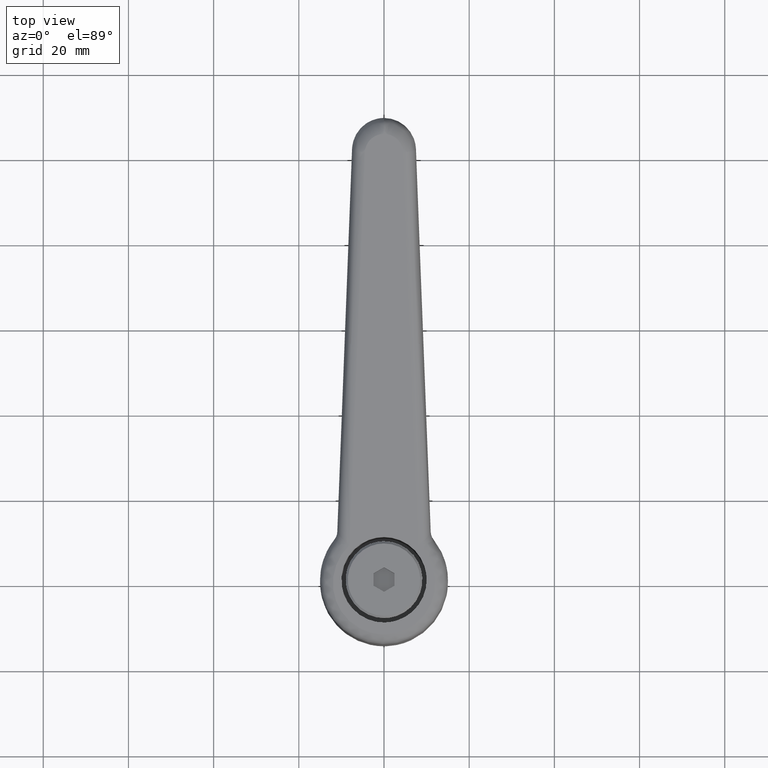
[diagram: clean part render]
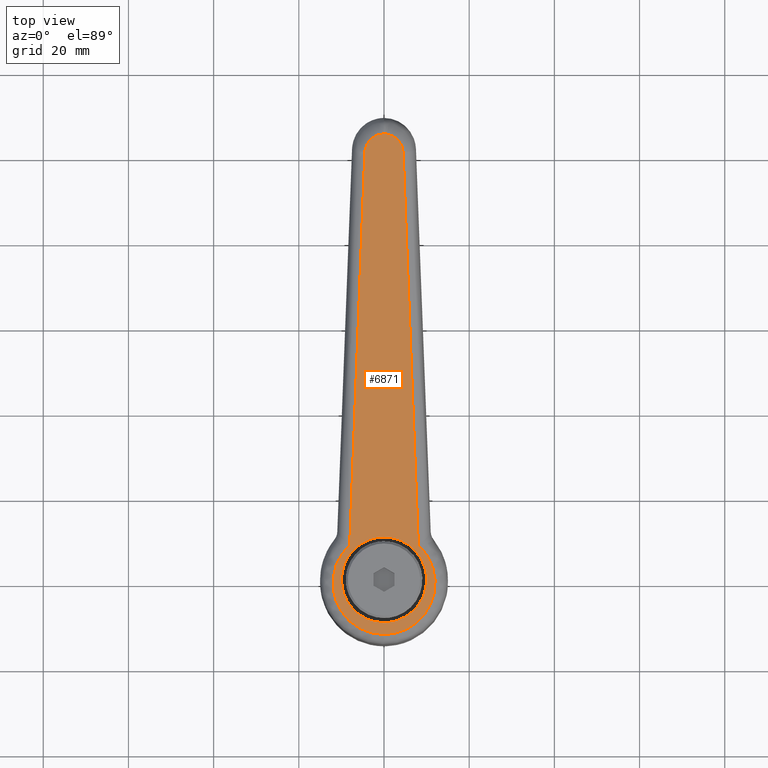
[diagram: same view with one face highlighted and labeled with its STEP entity id]
A machine part, top view. The second image highlights one B-rep face of the part: STEP entity #6871.
In plain terms, the highlighted face is a freeform B-spline surface patch.
Its self-contained STEP definition (entity closure, byte-faithful):
#1842=CARTESIAN_POINT('',(-0.087265355182425,-9.999619230639976,47.911946759522152));
#1843=VERTEX_POINT('',#1842);
#1849=CARTESIAN_POINT('',(9.999999999999998,1.224606E-015,50.618287176648231));
#1850=VERTEX_POINT('',#1849);
#1851=CARTESIAN_POINT('',(9.999999999999998,1.224606E-015,50.618287176648231));
#1852=CARTESIAN_POINT('',(9.999999999999998,-10.000000000000002,50.618287176648252));
#1853=CARTESIAN_POINT('',(1.836910E-015,-10.0,47.935359423886197));
#1854=CARTESIAN_POINT('',(-0.043633508405738,-10.0,47.923652868820994));
#1855=CARTESIAN_POINT('',(-0.087265355182425,-9.999619230639976,47.911946759522152));
#1863=(BOUNDED_CURVE()B_SPLINE_CURVE(2,(#1851,#1852,#1853,#1854,#1855),.UNSPECIFIED.,.F.,.U.)B_SPLINE_CURVE_WITH_KNOTS((3,2,3),(0.500000000000000,0.750000000000000,0.751539894341988),.UNSPECIFIED.)CURVE()GEOMETRIC_REPRESENTATION_ITEM()RATIONAL_B_SPLINE_CURVE((1.0,0.707106781186548,1.0,0.998195901558170,0.996414028084204))REPRESENTATION_ITEM(''));
#1864=EDGE_CURVE('',#1850,#1843,#1863,.T.);
#1866=CARTESIAN_POINT('',(-1.659384539936182,9.861361110344795,47.490158540388222));
#1867=VERTEX_POINT('',#1866);
#1868=CARTESIAN_POINT('',(-1.659384539936183,9.861361110344795,47.490158540388229));
#1869=CARTESIAN_POINT('',(-0.835483797330303,9.999999999999998,47.711205157202144));
#1870=CARTESIAN_POINT('',(-6.123032E-016,10.0,47.935359423886197));
#1871=CARTESIAN_POINT('',(9.999999999999998,10.000000000000002,50.618287176648252));
#1872=CARTESIAN_POINT('',(9.999999999999998,1.224606E-015,50.618287176648231));
#1880=(BOUNDED_CURVE()B_SPLINE_CURVE(2,(#1868,#1869,#1870,#1871,#1872),.UNSPECIFIED.,.F.,.U.)B_SPLINE_CURVE_WITH_KNOTS((3,2,3),(0.221449239578224,0.250000000000000,0.500000000000000),.UNSPECIFIED.)CURVE()GEOMETRIC_REPRESENTATION_ITEM()RATIONAL_B_SPLINE_CURVE((0.940741429844122,0.966550703521977,1.0,0.707106781186548,1.0))REPRESENTATION_ITEM(''));
#1881=EDGE_CURVE('',#1867,#1850,#1880,.T.);
#1929=CARTESIAN_POINT('',(-9.999999999999998,0.0,45.252431671124171));
#1930=VERTEX_POINT('',#1929);
#1931=CARTESIAN_POINT('',(-9.999999999999998,0.0,45.252431671124171));
#1932=CARTESIAN_POINT('',(-9.999999999999996,8.457874492810086,45.252431671124164));
#1933=CARTESIAN_POINT('',(-1.659384539936183,9.861361110344795,47.490158540388229));
#1941=(BOUNDED_CURVE()B_SPLINE_CURVE(2,(#1931,#1932,#1933),.UNSPECIFIED.,.F.,.U.)B_SPLINE_CURVE_WITH_KNOTS((3,3),(0.0,0.221449239578224),.UNSPECIFIED.)CURVE()GEOMETRIC_REPRESENTATION_ITEM()RATIONAL_B_SPLINE_CURVE((1.0,0.740556077664571,0.940741429844122))REPRESENTATION_ITEM(''));
#1942=EDGE_CURVE('',#1930,#1867,#1941,.T.);
#1944=CARTESIAN_POINT('',(-0.087265355182425,-9.999619230639976,47.911946759522159));
#1945=CARTESIAN_POINT('',(-9.999999999999998,-9.913112105555829,45.252431671124164));
#1946=CARTESIAN_POINT('',(-9.999999999999998,0.0,45.252431671124171));
#1954=(BOUNDED_CURVE()B_SPLINE_CURVE(2,(#1944,#1945,#1946),.UNSPECIFIED.,.F.,.U.)B_SPLINE_CURVE_WITH_KNOTS((3,3),(0.751539894341987,1.0),.UNSPECIFIED.)CURVE()GEOMETRIC_REPRESENTATION_ITEM()RATIONAL_B_SPLINE_CURVE((0.996414028084206,0.708910879628376,1.0))REPRESENTATION_ITEM(''));
#1955=EDGE_CURVE('',#1843,#1930,#1954,.T.);
#4457=CARTESIAN_POINT('',(8.123781733177820,8.047932275665861,50.114911370818703));
#4458=VERTEX_POINT('',#4457);
#4989=CARTESIAN_POINT('',(8.123781733177699,-8.047932275665991,50.114911370818703));
#4990=VERTEX_POINT('',#4989);
#6458=CARTESIAN_POINT('',(8.123781733177834,8.047932275665847,50.114911370818660));
#6459=CARTESIAN_POINT('',(2.598695241357906,14.158784061128220,48.632570582287229));
#6460=CARTESIAN_POINT('',(-5.089345353260654,11.198526960557951,46.569924834720908));
#6461=CARTESIAN_POINT('',(-12.777385947879289,8.238269859987652,44.507279087154565));
#6462=CARTESIAN_POINT('',(-12.777385947879290,9.886232E-014,44.507279087154572));
#6463=CARTESIAN_POINT('',(-12.777385947879289,-8.238269859987508,44.507279087154565));
#6464=CARTESIAN_POINT('',(-5.089345353260838,-11.198526960557880,46.569924834720858));
#6465=CARTESIAN_POINT('',(2.598695241357674,-14.158784061128268,48.632570582287173));
#6466=CARTESIAN_POINT('',(8.123781733177703,-8.047932275665994,50.114911370818632));
#6474=(BOUNDED_CURVE()B_SPLINE_CURVE(2,(#6458,#6459,#6460,#6461,#6462,#6463,#6464,#6465,#6466),.UNSPECIFIED.,.F.,.U.)B_SPLINE_CURVE_WITH_KNOTS((3,2,2,2,3),(0.0,0.250000000000000,0.500000000000000,0.750000000000000,1.0),.UNSPECIFIED.)CURVE()GEOMETRIC_REPRESENTATION_ITEM()RATIONAL_B_SPLINE_CURVE((1.0,0.824417961488121,1.0,0.824417961488121,1.0,0.824417961488121,1.0,0.824417961488121,1.0))REPRESENTATION_ITEM(''));
#6475=EDGE_CURVE('',#4458,#4990,#6474,.T.);
#6502=CARTESIAN_POINT('',(99.896618855952298,4.496628667928765,74.736900537458794));
#6503=VERTEX_POINT('',#6502);
#6504=CARTESIAN_POINT('',(99.896618855952298,4.496628667928765,74.736900537458794));
#6505=CARTESIAN_POINT('',(8.123781733177820,8.047932275665861,50.114911370818703));
#6506=QUASI_UNIFORM_CURVE('',1,(#6504,#6505),.UNSPECIFIED.,.F.,.U.);
#6507=EDGE_CURVE('',#6503,#4458,#6506,.T.);
#6541=CARTESIAN_POINT('',(99.896618855961606,-4.496628667928494,74.736900537461295));
#6542=VERTEX_POINT('',#6541);
#6543=CARTESIAN_POINT('',(8.123781733177699,-8.047932275665991,50.114911370818703));
#6544=CARTESIAN_POINT('',(99.896618855961606,-4.496628667928494,74.736900537461295));
#6545=QUASI_UNIFORM_CURVE('',1,(#6543,#6544),.UNSPECIFIED.,.F.,.U.);
#6546=EDGE_CURVE('',#4990,#6542,#6545,.T.);
#6618=CARTESIAN_POINT('',(104.222614052114590,-0.000005887852206,75.897533794468700));
#6619=VERTEX_POINT('',#6618);
#6651=CARTESIAN_POINT('',(104.222614052114590,-0.000005887852206,75.897533794468700));
#6652=CARTESIAN_POINT('',(104.222614052120700,4.329227039856051,75.897533794470320));
#6653=CARTESIAN_POINT('',(99.896618855952298,4.496628667928764,74.736900537458780));
#6661=(BOUNDED_CURVE()B_SPLINE_CURVE(2,(#6651,#6652,#6653),.UNSPECIFIED.,.F.,.U.)CURVE()GEOMETRIC_REPRESENTATION_ITEM()QUASI_UNIFORM_CURVE()RATIONAL_B_SPLINE_CURVE((1.0,0.720648227009823,1.0))REPRESENTATION_ITEM(''));
#6662=EDGE_CURVE('',#6619,#6503,#6661,.T.);
#6726=CARTESIAN_POINT('',(99.896618855961606,-4.496628667928494,74.736900537461295));
#6727=CARTESIAN_POINT('',(104.222602723306790,-4.329227478244406,75.897530755031397));
#6728=CARTESIAN_POINT('',(104.222614052114590,-0.000005887852206,75.897533794468686));
#6736=(BOUNDED_CURVE()B_SPLINE_CURVE(2,(#6726,#6727,#6728),.UNSPECIFIED.,.F.,.U.)CURVE()GEOMETRIC_REPRESENTATION_ITEM()QUASI_UNIFORM_CURVE()RATIONAL_B_SPLINE_CURVE((1.0,0.720649134132096,1.0))REPRESENTATION_ITEM(''));
#6737=EDGE_CURVE('',#6542,#6619,#6736,.T.);
#6853=CARTESIAN_POINT('',(-18.621535303103570,-13.188954505279931,42.939336037512838));
#6854=CARTESIAN_POINT('',(110.066758177031800,-13.188954505279931,77.465475440856849));
#6855=CARTESIAN_POINT('',(-18.621535303103581,13.188954163431561,42.939336037512838));
#6856=CARTESIAN_POINT('',(110.066758177031800,13.188954163431561,77.465475440856849));
#6857=B_SPLINE_SURFACE_WITH_KNOTS('',1,1,((#6853,#6855),(#6854,#6856)),.UNSPECIFIED.,.F.,.F.,.U.,(2,2),(2,2),(0.0,133.239375489862600),(0.0,26.377908668711491),.UNSPECIFIED.);
#6858=ORIENTED_EDGE('',*,*,#6507,.T.);
#6859=ORIENTED_EDGE('',*,*,#6475,.T.);
#6860=ORIENTED_EDGE('',*,*,#6546,.T.);
#6861=ORIENTED_EDGE('',*,*,#6737,.T.);
#6862=ORIENTED_EDGE('',*,*,#6662,.T.);
#6863=EDGE_LOOP('',(#6858,#6859,#6860,#6861,#6862));
#6864=FACE_OUTER_BOUND('',#6863,.T.);
#6865=ORIENTED_EDGE('',*,*,#1864,.T.);
#6866=ORIENTED_EDGE('',*,*,#1955,.T.);
#6867=ORIENTED_EDGE('',*,*,#1942,.T.);
#6868=ORIENTED_EDGE('',*,*,#1881,.T.);
#6869=EDGE_LOOP('',(#6865,#6866,#6867,#6868));
#6870=FACE_BOUND('',#6869,.T.);
#6871=ADVANCED_FACE('',(#6864,#6870),#6857,.T.);